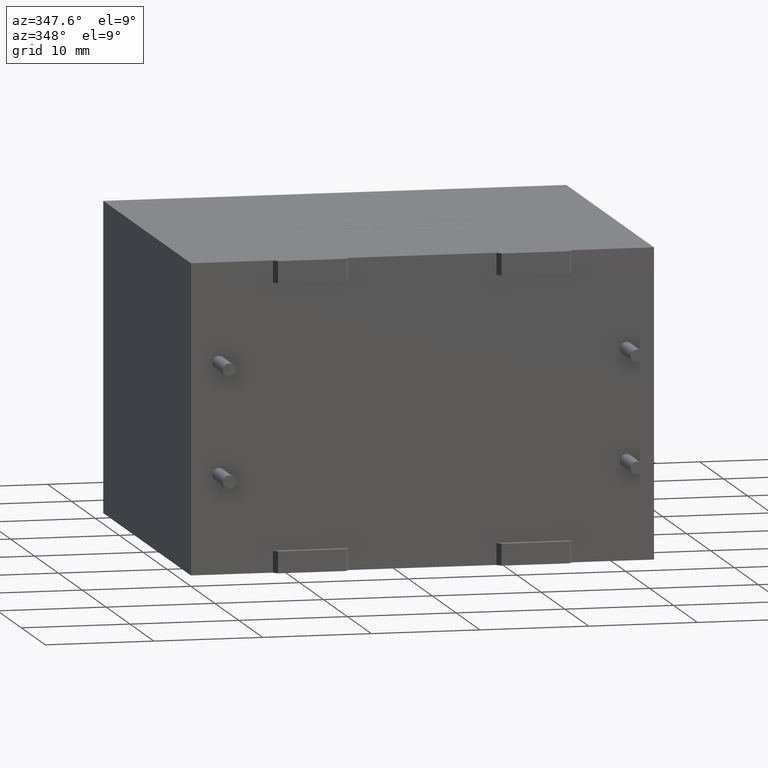
[diagram: clean part render]
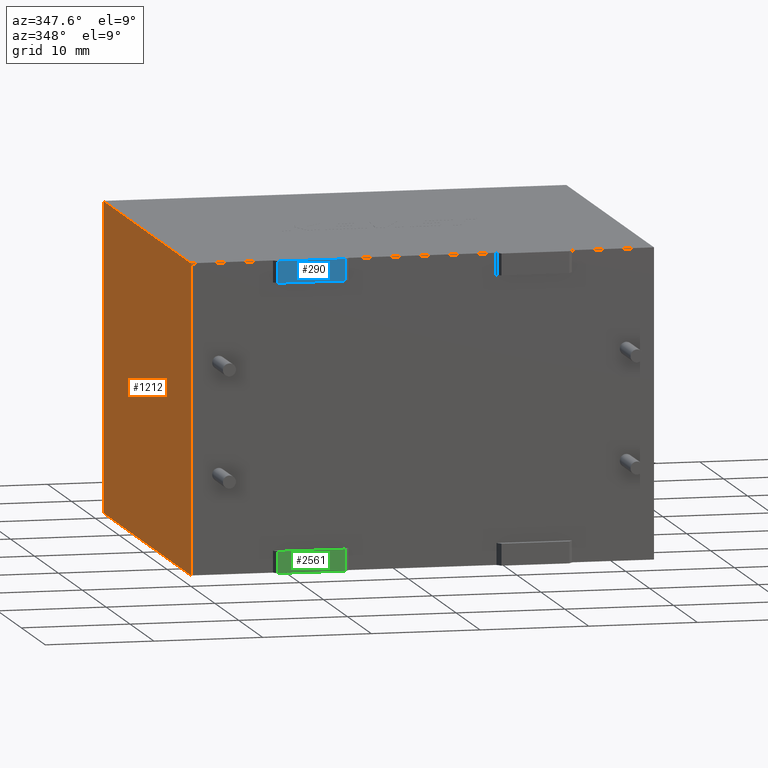
[diagram: same view with three faces highlighted in distinct colors, each labeled with its STEP entity id]
A machine part, auxiliary view with three faces highlighted in distinct colors.
Their STEP definitions:

[orange] entity #1212 — the highlighted planar face has unit normal (1, 0, 0).
#11 = VERTEX_POINT ( 'NONE', #3259 ) ;
#56 = CARTESIAN_POINT ( 'NONE',  ( 0.0000000000000000000, 36.70000000000000300, 28.39999999999999900 ) ) ;
#325 = EDGE_CURVE ( 'NONE', #1561, #2340, #2642, .T. ) ;
#337 = VERTEX_POINT ( 'NONE', #1807 ) ;
#386 = PLANE ( 'NONE',  #1569 ) ;
#451 = VECTOR ( 'NONE', #1384, 1000.000000000000000 ) ;
#571 = ORIENTED_EDGE ( 'NONE', *, *, #1633, .T. ) ;
#846 = ORIENTED_EDGE ( 'NONE', *, *, #1710, .F. ) ;
#885 = DIRECTION ( 'NONE',  ( -0.0000000000000000000, -1.000000000000000000, -0.0000000000000000000 ) ) ;
#889 = CARTESIAN_POINT ( 'NONE',  ( 0.0000000000000000000, 0.0000000000000000000, 28.39999999999999900 ) ) ;
#1212 = ADVANCED_FACE ( 'NONE', ( #2408 ), #386, .F. ) ;
#1349 = VECTOR ( 'NONE', #885, 1000.000000000000000 ) ;
#1384 = DIRECTION ( 'NONE',  ( -0.0000000000000000000, -0.0000000000000000000, -1.000000000000000000 ) ) ;
#1506 = LINE ( 'NONE', #2031, #2483 ) ;
#1521 = DIRECTION ( 'NONE',  ( -0.0000000000000000000, -0.0000000000000000000, -1.000000000000000000 ) ) ;
#1561 = VERTEX_POINT ( 'NONE', #56 ) ;
#1569 = AXIS2_PLACEMENT_3D ( 'NONE', #889, #1922, #2171 ) ;
#1633 = EDGE_CURVE ( 'NONE', #2340, #11, #1949, .T. ) ;
#1663 = CARTESIAN_POINT ( 'NONE',  ( 0.0000000000000000000, 0.0000000000000000000, 0.0000000000000000000 ) ) ;
#1710 = EDGE_CURVE ( 'NONE', #1561, #337, #1506, .T. ) ;
#1807 = CARTESIAN_POINT ( 'NONE',  ( 0.0000000000000000000, 0.0000000000000000000, 28.39999999999999900 ) ) ;
#1922 = DIRECTION ( 'NONE',  ( 1.000000000000000000, 0.0000000000000000000, 0.0000000000000000000 ) ) ;
#1932 = EDGE_CURVE ( 'NONE', #337, #11, #2709, .T. ) ;
#1949 = LINE ( 'NONE', #1663, #1349 ) ;
#2016 = VECTOR ( 'NONE', #1521, 1000.000000000000000 ) ;
#2031 = CARTESIAN_POINT ( 'NONE',  ( 0.0000000000000000000, 0.0000000000000000000, 28.39999999999999900 ) ) ;
#2036 = CARTESIAN_POINT ( 'NONE',  ( 0.0000000000000000000, 36.70000000000000300, 28.39999999999999900 ) ) ;
#2171 = DIRECTION ( 'NONE',  ( 0.0000000000000000000, 0.0000000000000000000, -1.000000000000000000 ) ) ;
#2340 = VERTEX_POINT ( 'NONE', #3318 ) ;
#2365 = CARTESIAN_POINT ( 'NONE',  ( 0.0000000000000000000, 0.0000000000000000000, 28.39999999999999900 ) ) ;
#2408 = FACE_OUTER_BOUND ( 'NONE', #3299, .T. ) ;
#2483 = VECTOR ( 'NONE', #3330, 1000.000000000000000 ) ;
#2642 = LINE ( 'NONE', #2036, #2016 ) ;
#2709 = LINE ( 'NONE', #2365, #451 ) ;
#3057 = ORIENTED_EDGE ( 'NONE', *, *, #325, .T. ) ;
#3147 = ORIENTED_EDGE ( 'NONE', *, *, #1932, .F. ) ;
#3259 = CARTESIAN_POINT ( 'NONE',  ( 0.0000000000000000000, 0.0000000000000000000, 0.0000000000000000000 ) ) ;
#3299 = EDGE_LOOP ( 'NONE', ( #571, #3147, #846, #3057 ) ) ;
#3318 = CARTESIAN_POINT ( 'NONE',  ( 0.0000000000000000000, 36.70000000000000300, 0.0000000000000000000 ) ) ;
#3330 = DIRECTION ( 'NONE',  ( -0.0000000000000000000, -1.000000000000000000, -0.0000000000000000000 ) ) ;

[blue] entity #290 — the highlighted planar face has unit normal (-0, -1, 0).
#23 = EDGE_CURVE ( 'NONE', #860, #604, #1465, .T. ) ;
#40 = EDGE_CURVE ( 'NONE', #1235, #608, #2765, .T. ) ;
#98 = EDGE_LOOP ( 'NONE', ( #1395, #956, #2356, #2929 ) ) ;
#192 = DIRECTION ( 'NONE',  ( 1.000000000000000000, -1.737252916222827300E-017, 0.0000000000000000000 ) ) ;
#213 = LINE ( 'NONE', #1756, #1631 ) ;
#290 = ADVANCED_FACE ( 'NONE', ( #2515 ), #1044, .T. ) ;
#494 = DIRECTION ( 'NONE',  ( 0.0000000000000000000, 0.0000000000000000000, 1.000000000000000000 ) ) ;
#503 = DIRECTION ( 'NONE',  ( -1.737252916222827300E-017, -1.000000000000000000, 0.0000000000000000000 ) ) ;
#514 = VECTOR ( 'NONE', #2593, 1000.000000000000000 ) ;
#604 = VERTEX_POINT ( 'NONE', #879 ) ;
#608 = VERTEX_POINT ( 'NONE', #616 ) ;
#616 = CARTESIAN_POINT ( 'NONE',  ( 14.14090000000000200, -0.4999999999999996700, 28.39999999999999900 ) ) ;
#794 = CARTESIAN_POINT ( 'NONE',  ( 7.900000000000000400, -0.4999999999999995600, 26.39999999999999900 ) ) ;
#860 = VERTEX_POINT ( 'NONE', #2343 ) ;
#879 = CARTESIAN_POINT ( 'NONE',  ( 14.14090000000000200, -0.4999999999999996700, 26.39999999999999900 ) ) ;
#943 = VECTOR ( 'NONE', #192, 1000.000000000000000 ) ;
#956 = ORIENTED_EDGE ( 'NONE', *, *, #1546, .F. ) ;
#1044 = PLANE ( 'NONE',  #1880 ) ;
#1170 = CARTESIAN_POINT ( 'NONE',  ( 7.900000000000000400, -0.4999999999999995600, 26.39999999999999900 ) ) ;
#1190 = VECTOR ( 'NONE', #2442, 1000.000000000000000 ) ;
#1235 = VERTEX_POINT ( 'NONE', #1407 ) ;
#1395 = ORIENTED_EDGE ( 'NONE', *, *, #40, .F. ) ;
#1407 = CARTESIAN_POINT ( 'NONE',  ( 7.900000000000000400, -0.4999999999999995600, 28.39999999999999900 ) ) ;
#1422 = EDGE_CURVE ( 'NONE', #604, #608, #213, .T. ) ;
#1465 = LINE ( 'NONE', #1170, #1190 ) ;
#1546 = EDGE_CURVE ( 'NONE', #860, #1235, #2024, .T. ) ;
#1631 = VECTOR ( 'NONE', #494, 1000.000000000000000 ) ;
#1756 = CARTESIAN_POINT ( 'NONE',  ( 14.14090000000000200, -0.4999999999999996700, 26.39999999999999900 ) ) ;
#1880 = AXIS2_PLACEMENT_3D ( 'NONE', #2601, #503, #2319 ) ;
#1927 = CARTESIAN_POINT ( 'NONE',  ( 7.900000000000000400, -0.4999999999999995600, 28.39999999999999900 ) ) ;
#2024 = LINE ( 'NONE', #794, #514 ) ;
#2319 = DIRECTION ( 'NONE',  ( 1.000000000000000000, -1.737252916222827300E-017, 0.0000000000000000000 ) ) ;
#2343 = CARTESIAN_POINT ( 'NONE',  ( 7.900000000000000400, -0.4999999999999995600, 26.39999999999999900 ) ) ;
#2356 = ORIENTED_EDGE ( 'NONE', *, *, #23, .T. ) ;
#2442 = DIRECTION ( 'NONE',  ( 1.000000000000000000, -1.737252916222827300E-017, 0.0000000000000000000 ) ) ;
#2515 = FACE_OUTER_BOUND ( 'NONE', #98, .T. ) ;
#2593 = DIRECTION ( 'NONE',  ( 0.0000000000000000000, 0.0000000000000000000, 1.000000000000000000 ) ) ;
#2601 = CARTESIAN_POINT ( 'NONE',  ( 7.900000000000000400, -0.4999999999999995600, 26.39999999999999900 ) ) ;
#2765 = LINE ( 'NONE', #1927, #943 ) ;
#2929 = ORIENTED_EDGE ( 'NONE', *, *, #1422, .T. ) ;

[green] entity #2561 — the highlighted planar face has unit normal (0, 1, 0).
#36 = DIRECTION ( 'NONE',  ( 0.0000000000000000000, 0.0000000000000000000, -1.000000000000000000 ) ) ;
#99 = CARTESIAN_POINT ( 'NONE',  ( 7.900000000000000400, -0.4999999999999995600, 0.0000000000000000000 ) ) ;
#254 = EDGE_LOOP ( 'NONE', ( #1274, #1041, #1358, #2654 ) ) ;
#360 = EDGE_CURVE ( 'NONE', #371, #454, #2799, .T. ) ;
#371 = VERTEX_POINT ( 'NONE', #523 ) ;
#435 = EDGE_CURVE ( 'NONE', #1280, #454, #901, .T. ) ;
#453 = DIRECTION ( 'NONE',  ( 0.0000000000000000000, 0.0000000000000000000, -1.000000000000000000 ) ) ;
#454 = VERTEX_POINT ( 'NONE', #3133 ) ;
#523 = CARTESIAN_POINT ( 'NONE',  ( 14.14090000000000200, -0.4999999999999996700, 2.000000000000000000 ) ) ;
#588 = DIRECTION ( 'NONE',  ( -1.000000000000000000, 1.737252916222827300E-017, 0.0000000000000000000 ) ) ;
#714 = CARTESIAN_POINT ( 'NONE',  ( 7.900000000000000400, -0.4999999999999995600, 0.0000000000000000000 ) ) ;
#746 = VECTOR ( 'NONE', #36, 1000.000000000000000 ) ;
#901 = LINE ( 'NONE', #99, #2722 ) ;
#940 = AXIS2_PLACEMENT_3D ( 'NONE', #1374, #2138, #588 ) ;
#994 = FACE_OUTER_BOUND ( 'NONE', #254, .T. ) ;
#1041 = ORIENTED_EDGE ( 'NONE', *, *, #360, .F. ) ;
#1102 = DIRECTION ( 'NONE',  ( 1.000000000000000000, -1.737252916222827300E-017, 0.0000000000000000000 ) ) ;
#1103 = DIRECTION ( 'NONE',  ( 1.000000000000000000, -1.737252916222827300E-017, 0.0000000000000000000 ) ) ;
#1206 = VECTOR ( 'NONE', #453, 1000.000000000000000 ) ;
#1274 = ORIENTED_EDGE ( 'NONE', *, *, #435, .T. ) ;
#1280 = VERTEX_POINT ( 'NONE', #714 ) ;
#1358 = ORIENTED_EDGE ( 'NONE', *, *, #2110, .F. ) ;
#1374 = CARTESIAN_POINT ( 'NONE',  ( 7.900000000000000400, -0.4999999999999995600, 2.000000000000000000 ) ) ;
#1593 = CARTESIAN_POINT ( 'NONE',  ( 7.900000000000000400, -0.4999999999999995600, 2.000000000000000000 ) ) ;
#1809 = LINE ( 'NONE', #1936, #1206 ) ;
#1936 = CARTESIAN_POINT ( 'NONE',  ( 7.900000000000000400, -0.4999999999999995600, 2.000000000000000000 ) ) ;
#2110 = EDGE_CURVE ( 'NONE', #2569, #371, #2244, .T. ) ;
#2138 = DIRECTION ( 'NONE',  ( 1.737252916222827300E-017, 1.000000000000000000, 0.0000000000000000000 ) ) ;
#2169 = VECTOR ( 'NONE', #1103, 1000.000000000000000 ) ;
#2178 = EDGE_CURVE ( 'NONE', #2569, #1280, #1809, .T. ) ;
#2244 = LINE ( 'NONE', #1593, #2169 ) ;
#2561 = ADVANCED_FACE ( 'NONE', ( #994 ), #2911, .F. ) ;
#2569 = VERTEX_POINT ( 'NONE', #3163 ) ;
#2654 = ORIENTED_EDGE ( 'NONE', *, *, #2178, .T. ) ;
#2722 = VECTOR ( 'NONE', #1102, 1000.000000000000000 ) ;
#2799 = LINE ( 'NONE', #2819, #746 ) ;
#2819 = CARTESIAN_POINT ( 'NONE',  ( 14.14090000000000200, -0.4999999999999996700, 2.000000000000000000 ) ) ;
#2911 = PLANE ( 'NONE',  #940 ) ;
#3133 = CARTESIAN_POINT ( 'NONE',  ( 14.14090000000000200, -0.4999999999999996700, 0.0000000000000000000 ) ) ;
#3163 = CARTESIAN_POINT ( 'NONE',  ( 7.900000000000000400, -0.4999999999999995600, 2.000000000000000000 ) ) ;